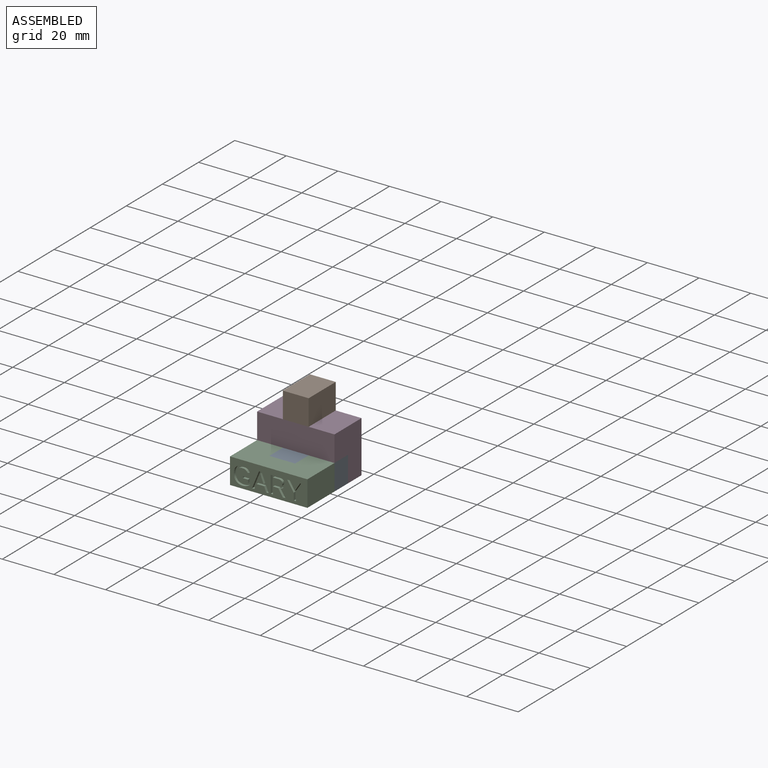
[diagram: assembled view]
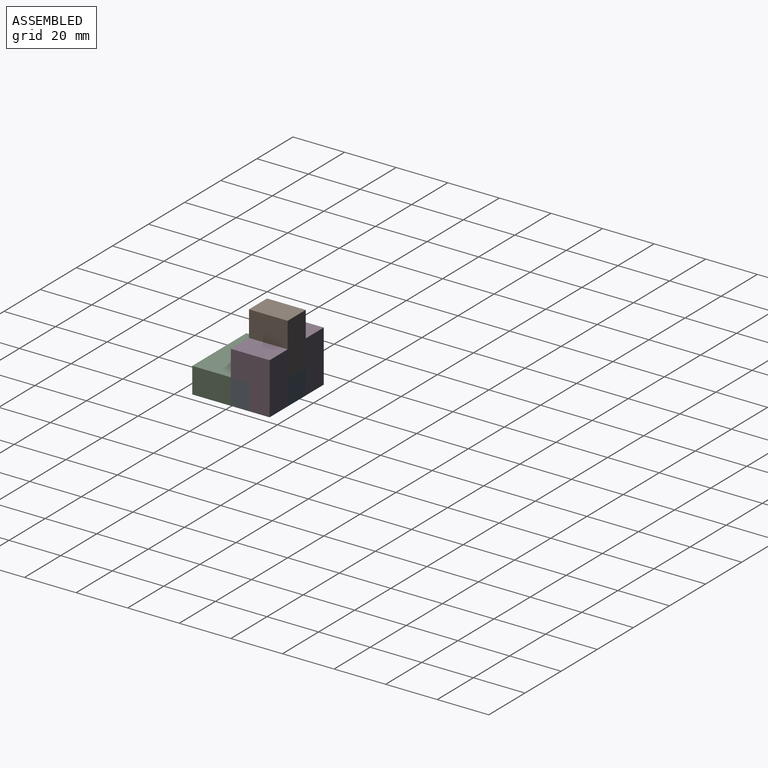
[diagram: assembled view, second angle]
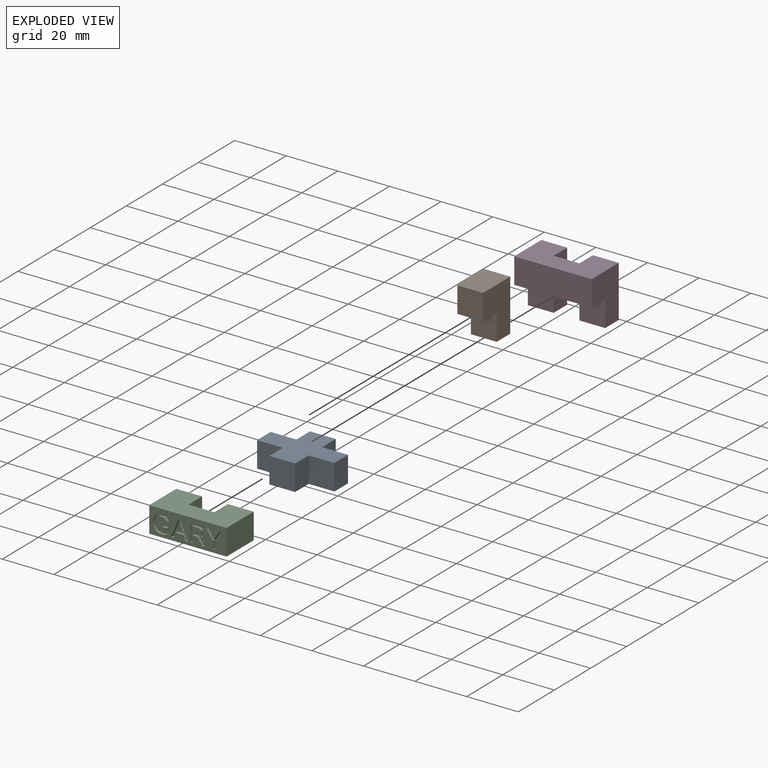
[diagram: exploded view]
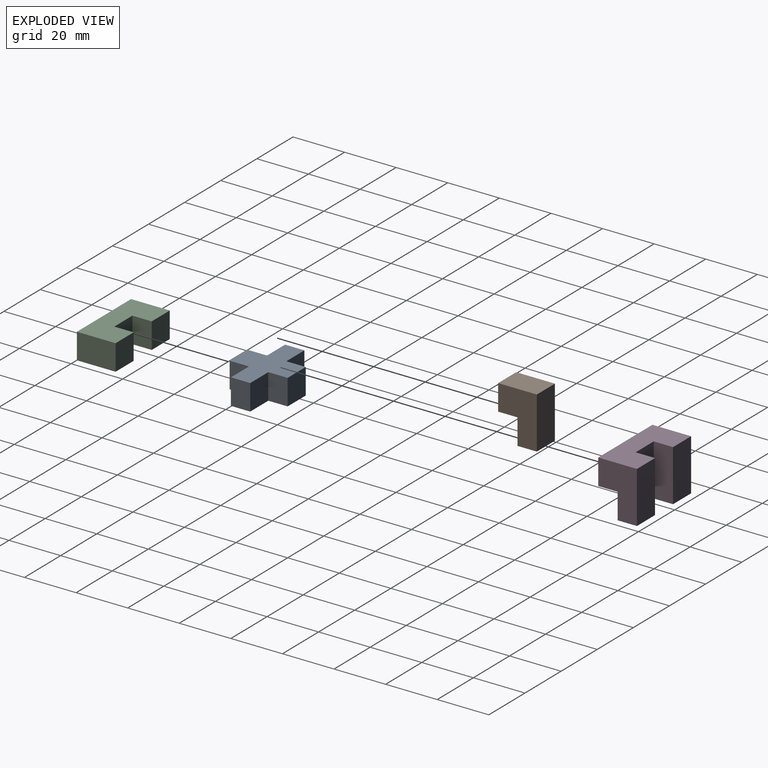
[diagram: exploded view, second angle]
ASSEMBLY  parts=4 mates=3
PART A: 14 faces, bbox 30x22.5x10 mm
  f0: plane 10x7.5mm, normal (-1,0,0), area 75mm2, adj f1,f11,f12,f13
  f1: plane 10x10mm, normal (0,-1,0), area 100mm2, adj f0,f2,f12,f13
  f2: plane 10x7.5mm, normal (1,0,0), area 75mm2, adj f1,f3,f12,f13
  f3: plane 10x10mm, normal (0,-1,0), area 100mm2, adj f2,f4,f12,f13
  f4: plane 10x7.5mm, normal (1,0,0), area 75mm2, adj f3,f5,f12,f13
  f5: plane 10x10mm, normal (0,1,0), area 100mm2, adj f4,f6,f12,f13
  f6: plane 10x7.5mm, normal (1,0,0), area 75mm2, adj f5,f7,f12,f13
  f7: plane 10x10mm, normal (0,1,0), area 100mm2, adj f6,f8,f12,f13
  f8: plane 10x7.5mm, normal (-1,0,0), area 75mm2, adj f7,f9,f12,f13
  f9: plane 10x10mm, normal (0,1,0), area 100mm2, adj f8,f10,f12,f13
  f10: plane 10x7.5mm, normal (-1,0,0), area 75mm2, adj f9,f11,f12,f13
  f11: plane 10x10mm, normal (0,-1,0), area 100mm2, adj f0,f10,f12,f13
  f12: plane 30x22.5mm, normal (0,0,1), area 375mm2, adj f0,f1,f2,f3,f4,f5,f6,f7
  f13: plane 30x22.5mm, normal (0,0,-1), area 375mm2, adj f0,f1,f2,f3,f4,f5,f6,f7
PART B: 8 faces, bbox 10x15x20 mm
  f0: plane 20x15mm, normal (-1,0,0), area 225mm2, adj f1,f3,f4,f5,f6,f7
  f1: plane 20x10mm, normal (0,-1,0), area 200mm2, adj f0,f2,f4,f7
  f2: plane 20x15mm, normal (1,0,0), area 225mm2, adj f1,f3,f4,f5,f6,f7
  f3: plane 10x10mm, normal (0,1,0), area 100mm2, adj f0,f2,f4,f5
  f4: plane 15x10mm, normal (0,0,1), area 150mm2, adj f0,f1,f2,f3
  f5: plane 10x7.5mm, normal (0,0,-1), area 75mm2, adj f0,f2,f3,f6
  f6: plane 10x10mm, normal (0,1,0), area 100mm2, adj f0,f2,f5,f7
  f7: plane 10x7.5mm, normal (0,0,-1), area 75mm2, adj f0,f1,f2,f6
PART C: 82 faces, bbox 30x15x10 mm
  f0: plane 30x10mm, normal (0,-1,0), area 232.7mm2, adj f1,f2,f8,f9,f10,f11,f12,f13
  f1: plane 15x10mm, normal (-1,0,0), area 150mm2, adj f0,f7,f8,f9
  f2: plane 15x10mm, normal (1,0,0), area 150mm2, adj f0,f3,f8,f9
  f3: plane 10x10mm, normal (0,1,0), area 100mm2, adj f2,f4,f8,f9
  f4: plane 10x7.5mm, normal (-1,0,0), area 75mm2, adj f3,f5,f8,f9
  f5: plane 10x10mm, normal (0,1,0), area 100mm2, adj f4,f6,f8,f9
  f6: plane 10x7.5mm, normal (1,0,0), area 75mm2, adj f5,f7,f8,f9
  f7: plane 10x10mm, normal (0,1,0), area 100mm2, adj f1,f6,f8,f9
  f8: plane 30x15mm, normal (0,0,1), area 375mm2, adj f0,f1,f2,f3,f4,f5,f6,f7
  f9: plane 30x15mm, normal (0,0,-1), area 375mm2, adj f0,f1,f2,f3,f4,f5,f6,f7
  f10: plane 2.75x1mm, normal (-1,0,0), area 2.8mm2, adj f0,f11,f18,f19
  f11: plane 3.89x2.56mm, normal (-0.83,0,0.55), area 4.7mm2, adj f0,f10,f12,f19
  f12: plane 1x0.99mm, normal (0,0,-1), area 1mm2, adj f0,f11,f13,f19
  f13: plane 3.16x2.01mm, normal (0.84,0,-0.54), area 3.7mm2, adj f0,f12,f14,f19
  f14: plane 3.16x2.02mm, normal (-0.84,0,-0.54), area 3.8mm2, adj f0,f13,f15,f19
  f15: plane 1x0.99mm, normal (0,0,-1), area 1mm2, adj f0,f14,f16,f19
  f16: plane 3.89x2.55mm, normal (0.84,0,0.55), area 4.7mm2, adj f0,f15,f17,f19
  f17: plane 2.75x1mm, normal (1,0,0), area 2.8mm2, adj f0,f16,f18,f19
  f18: plane 1x0.9mm, normal (0,0,1), area 0.9mm2, adj f0,f10,f17,f19
  f19: plane 6.64x6.01mm, normal (0,-1,0), area 9.5mm2, adj f10,f11,f12,f13,f14,f15,f16,f17
  f20: plane 1x0.13mm, normal (-0.95,0,0.31), area 0.1mm2, adj f21,f34,f35,f80
  f21: plane 1x0.39mm, normal (0.95,0,0.31), area 0.4mm2, adj f20,f22,f35,f80
  f22: extruded ~1x0.74mm, area 0.8mm2, adj f21,f23,f35,f80
  f23: plane 2.19x1mm, normal (0.93,0,0.36), area 2.4mm2, adj f22,f24,f35,f80
  f24: plane 2.48x1mm, normal (0,0,-1), area 2.5mm2, adj f23,f25,f35,f80
  f25: plane 2.18x1mm, normal (-0.93,0,0.36), area 2.3mm2, adj f24,f34,f35,f80
  f26: plane 1.94x1mm, normal (0.93,0,0.36), area 2.1mm2, adj f0,f27,f33,f35
  f27: plane 1x0.92mm, normal (0,0,1), area 0.9mm2, adj f0,f26,f28,f35
  f28: plane 6.64x2.67mm, normal (-0.93,0,-0.37), area 7.2mm2, adj f0,f27,f29,f35
  f29: plane 1.02x1mm, normal (0,0,-1), area 1mm2, adj f0,f28,f30,f35
  f30: plane 6.64x2.71mm, normal (0.93,0,-0.38), area 7.2mm2, adj f0,f29,f31,f35
  f31: plane 1x0.93mm, normal (0,0,1), area 0.9mm2, adj f0,f30,f32,f35
  f32: plane 1.94x1mm, normal (-0.93,0,0.37), area 2.1mm2, adj f0,f31,f33,f35
  f33: plane 3.03x1mm, normal (0,0,1), area 3mm2, adj f0,f26,f32,f35
  f34: extruded ~1x1mm, area 1.1mm2, adj f20,f25,f35,f80
  f35: plane 6.64x6.4mm, normal (0,-1,0), area 13.3mm2, adj f20,f21,f22,f23,f24,f25,f26,f27
  f36: extruded ~1x0.88mm, area 1mm2, adj f37,f54,f55,f81
  f37: extruded ~1x0.93mm, area 1mm2, adj f36,f38,f55,f81
  f38: extruded ~1.1x1mm, area 1.2mm2, adj f37,f39,f55,f81
  f39: plane 2.17x1mm, normal (0,0,-1), area 2.2mm2, adj f38,f40,f55,f81
  f40: plane 2.45x1mm, normal (-1,0,0), area 2.5mm2, adj f39,f41,f55,f81
  f41: plane 2.14x1mm, normal (0,0,1), area 2.1mm2, adj f40,f54,f55,f81
  f42: plane 2.76x1.73mm, normal (0.85,0,0.53), area 3.3mm2, adj f0,f43,f53,f55
  f43: plane 1.04x1mm, normal (0,0,1), area 1mm2, adj f0,f42,f44,f55
  f44: plane 2.86x1.89mm, normal (-0.84,0,-0.55), area 3.4mm2, adj f0,f43,f45,f55
  f45: extruded ~1.19x1mm, area 1.4mm2, adj f0,f44,f46,f55
  f46: extruded ~1.25x1mm, area 1.3mm2, adj f0,f45,f47,f55
  f47: extruded ~1.4x1mm, area 1.6mm2, adj f0,f46,f48,f55
  f48: extruded ~1.73x1mm, area 1.8mm2, adj f0,f47,f49,f55
  f49: plane 3.13x1mm, normal (0,0,-1), area 3.1mm2, adj f0,f48,f50,f55
  f50: plane 6.64x1mm, normal (1,0,0), area 6.6mm2, adj f0,f49,f51,f55
  f51: plane 1x0.9mm, normal (0,0,1), area 0.9mm2, adj f0,f50,f52,f55
  f52: plane 2.76x1mm, normal (-1,0,0), area 2.8mm2, adj f0,f51,f53,f55
  f53: plane 2.07x1mm, normal (0,0,1), area 2.1mm2, adj f0,f42,f52,f55
  f54: extruded ~1.13x1mm, area 1.2mm2, adj f36,f41,f55,f81
  f55: plane 6.64x5.73mm, normal (0,-1,0), area 16.5mm2, adj f36,f37,f38,f39,f40,f41,f42,f43
  f56: extruded ~2.5x1mm, area 2.7mm2, adj f0,f57,f78,f79
  f57: extruded ~1.84x1mm, area 1.9mm2, adj f0,f56,f58,f79
  f58: extruded ~1.2x1.15mm, area 1.7mm2, adj f0,f57,f59,f79
  f59: extruded ~1.8x1mm, area 1.9mm2, adj f0,f58,f60,f79
  f60: extruded ~1.66x1mm, area 1.7mm2, adj f0,f59,f61,f79
  f61: extruded ~1.29x1mm, area 1.6mm2, adj f0,f60,f62,f79
  f62: plane 2.29x1mm, normal (-1,0,0), area 2.3mm2, adj f0,f61,f63,f79
  f63: plane 2.81x1mm, normal (0,0,-1), area 2.8mm2, adj f0,f62,f64,f79
  f64: plane 1x0.75mm, normal (1,0,0), area 0.8mm2, adj f0,f63,f65,f79
  f65: plane 1.99x1mm, normal (0,0,1), area 2mm2, adj f0,f64,f66,f79
  f66: plane 1.2x1mm, normal (1,0,0), area 1.2mm2, adj f0,f65,f67,f79
  f67: extruded ~1x0.91mm, area 1.1mm2, adj f0,f66,f68,f79
  f68: extruded ~1.21x1mm, area 1.2mm2, adj f0,f67,f69,f79
  f69: extruded ~1.79x1mm, area 2mm2, adj f0,f68,f70,f79
  f70: extruded ~1.99x1mm, area 2.1mm2, adj f0,f69,f71,f79
  f71: extruded ~1.96x1mm, area 2.1mm2, adj f0,f70,f72,f79
  f72: extruded ~1.76x1mm, area 2mm2, adj f0,f71,f73,f79
  f73: extruded ~1.24x1mm, area 1.3mm2, adj f0,f72,f74,f79
  f74: extruded ~1x0.82mm, area 1.2mm2, adj f0,f73,f75,f79
  f75: plane 1x0.86mm, normal (-0.28,0,0.96), area 0.9mm2, adj f0,f74,f76,f79
  f76: extruded ~1.19x1.06mm, area 1.6mm2, adj f0,f75,f77,f79
  f77: extruded ~1.79x1mm, area 1.8mm2, adj f0,f76,f78,f79
  f78: extruded ~2.44x1mm, area 2.7mm2, adj f0,f56,f77,f79
  f79: plane 6.84x6.3mm, normal (0,-1,0), area 15.7mm2, adj f56,f57,f58,f59,f60,f61,f62,f63
  f80: plane 3.32x2.48mm, normal (0,-1,0), area 4mm2, adj f20,f21,f22,f23,f24,f25,f34
  f81: plane 3.66x2.45mm, normal (0,-1,0), area 8.3mm2, adj f36,f37,f38,f39,f40,f41,f54
PART D: 14 faces, bbox 30x15x20 mm
  f0: plane 30x7.5mm, normal (0,0,-1), area 225mm2, adj f2,f5,f6,f7,f10,f12
  f1: plane 20x7.5mm, normal (1,0,0), area 150mm2, adj f2,f8,f9,f10,f11
  f2: plane 10x10mm, normal (0,-1,0), area 100mm2, adj f0,f1,f3,f9
  f3: plane 20x7.5mm, normal (-1,0,0), area 150mm2, adj f2,f4,f9,f12,f13
  f4: plane 20x10mm, normal (0,-1,0), area 200mm2, adj f3,f5,f9,f13
  f5: plane 20x15mm, normal (1,0,0), area 225mm2, adj f0,f4,f6,f9,f12,f13
  f6: plane 30x10mm, normal (0,1,0), area 300mm2, adj f0,f5,f7,f9
  f7: plane 20x15mm, normal (-1,0,0), area 225mm2, adj f0,f6,f8,f9,f10,f11
  f8: plane 20x10mm, normal (0,-1,0), area 200mm2, adj f1,f7,f9,f11
  f9: plane 30x15mm, normal (0,0,1), area 375mm2, adj f1,f2,f3,f4,f5,f6,f7,f8
  f10: plane 10x10mm, normal (0,1,0), area 100mm2, adj f0,f1,f7,f11
  f11: plane 10x7.5mm, normal (0,0,-1), area 75mm2, adj f1,f7,f8,f10
  f12: plane 10x10mm, normal (0,1,0), area 100mm2, adj f0,f3,f5,f13
  f13: plane 10x7.5mm, normal (0,0,-1), area 75mm2, adj f3,f4,f5,f12
PLACE A t=(-18.18,-42.32,5.47)mm
PLACE B rot(axis=(0,0,1),180deg) t=(-16.59,-1.54,25.47)mm
PLACE C t=(-17.19,-41.07,5.47)mm
PLACE D rot(axis=(0,0,-1),180deg) t=(-14.47,-26.41,15.47)mm
MATE fastened B.f6 <-> D.f2  axis (0,-1,0) through (-16.78,-31.76,15.47)mm
MATE fastened A.f1 <-> C.f5  axis (0,-1,0) through (-16.78,-46.76,15.47)mm
MATE fastened D.f10 <-> A.f5  axis (0,-1,0) through (-6.78,-31.76,5.47)mm
